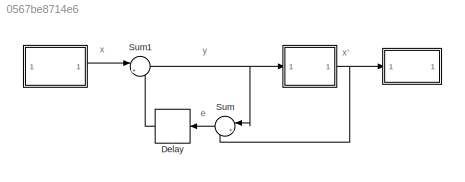
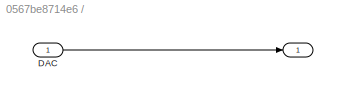
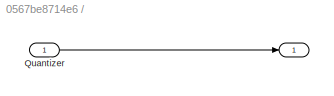
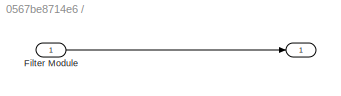
MODEL slx_0567be8714e6
KIND model
BLOCK [SubSystem]  
  FunctionWithSeparateData = off
  MaskHideContents = off
  MinAlgLoopOccurrences = off
  Opaque = off
  Ports = [1, 1]
  PropExecContextOutsideSubsystem = off
  RTWSystemCode = Auto
  RequestExecContextInheritance = off
BLOCK [SubSystem]   
  FunctionWithSeparateData = off
  MaskHideContents = off
  MinAlgLoopOccurrences = off
  Opaque = off
  Ports = [1, 1]
  PropExecContextOutsideSubsystem = off
  RTWSystemCode = Auto
  RequestExecContextInheritance = off
BLOCK [SubSystem]    
  FunctionWithSeparateData = off
  MaskHideContents = off
  MinAlgLoopOccurrences = off
  Opaque = off
  Ports = [1, 1]
  PropExecContextOutsideSubsystem = off
  RTWSystemCode = Auto
  RequestExecContextInheritance = off
BLOCK [Outport]    /  
  IconDisplay = Port number
BLOCK [Inport]    /Filter Module
  IconDisplay = Port number
BLOCK [Outport]   / 
  IconDisplay = Port number
BLOCK [Inport]   /Quantizer
  IconDisplay = Port number
BLOCK [Inport]  /					DAC
  IconDisplay = Port number
BLOCK [Outport]  /  
  IconDisplay = Port number
BLOCK [Delay] Delay
  DelayLength = 1
  InitialCondition = 0
  InputPortMap = u0
  Ports = [1, 1]
BLOCK [Sum] Sum
  IconShape = round
  InputSameDT = off
  Inputs = |+-
  OutDataTypeStr = Inherit: Inherit via internal rule
  Ports = [2, 1]
  SaturateOnIntegerOverflow = off
BLOCK [Sum] Sum1
  IconShape = round
  InputSameDT = off
  Inputs = |++
  OutDataTypeStr = Inherit: Inherit via internal rule
  Ports = [2, 1]
  SaturateOnIntegerOverflow = off
ANNOTATION (root): x'
ANNOTATION (root): e
ANNOTATION (root): x
ANNOTATION (root): y
LINE    /Filter Module:1 ->    /  :1
LINE    :1 -> Sum1:1
LINE   /Quantizer:1 ->   / :1
NET   :1 ->  :1, Sum:2
LINE  /					DAC:1 ->  /  :1
LINE Delay:1 -> Sum1:2
NET Sum1:1 ->   :1, Sum:1
LINE Sum:1 -> Delay:1
note: NET lines group one-source signal fan-out (src -> all destinations, sorted); 1:1 wires keep LINE
